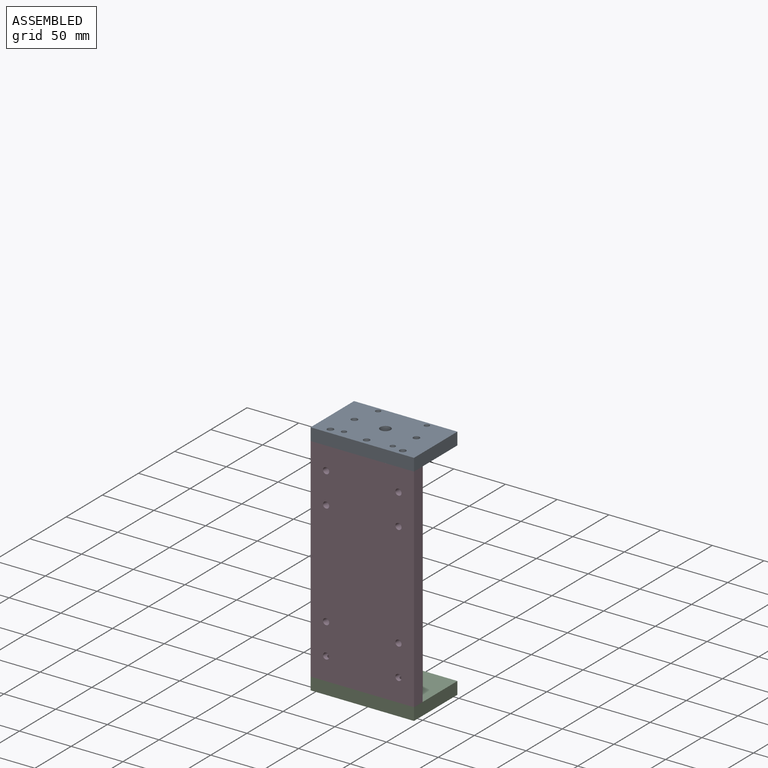
[diagram: assembled view]
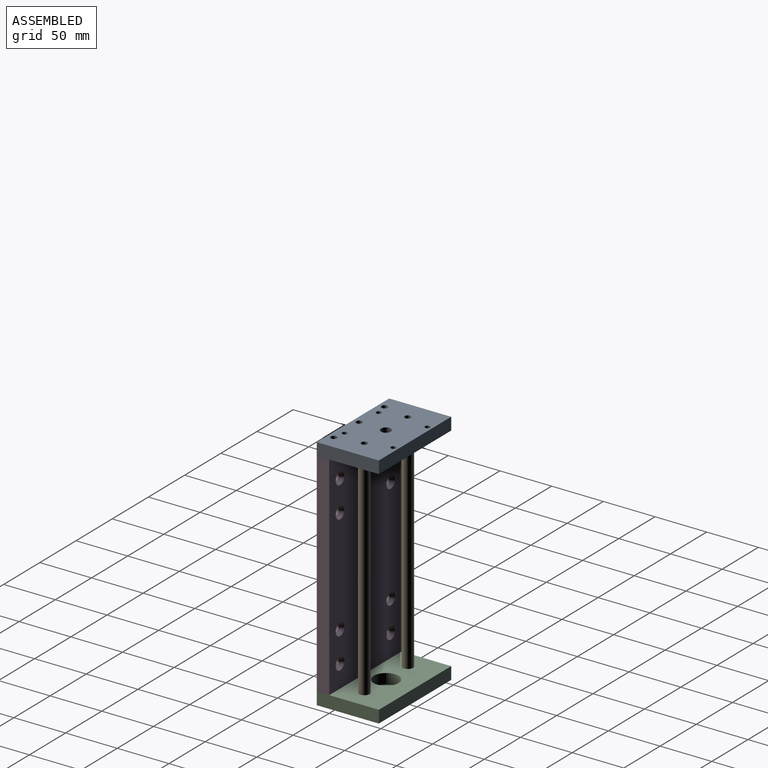
[diagram: assembled view, second angle]
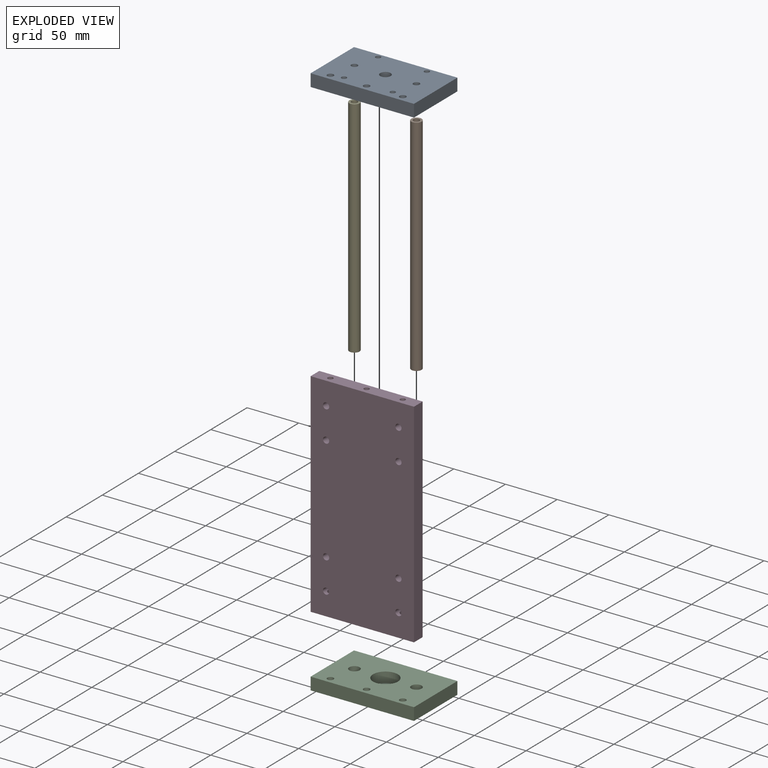
[diagram: exploded view]
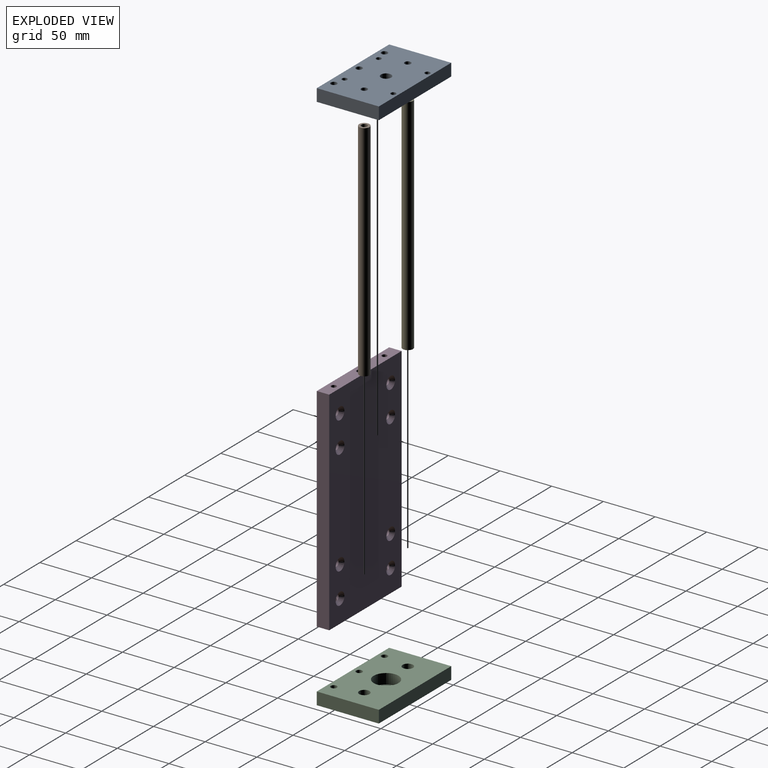
[diagram: exploded view, second angle]
ASSEMBLY  parts=5 mates=4
PART A: 22 faces, bbox 100x60x12 mm
  f0: plane 60x12mm, normal (-1,0,0), area 720mm2, adj f1,f3,f4,f5
  f1: plane 100x12mm, normal (0,-1,0), area 1200mm2, adj f0,f2,f4,f5
  f2: plane 60x12mm, normal (1,0,0), area 720mm2, adj f1,f3,f4,f5
  f3: plane 100x12mm, normal (0,1,0), area 1200mm2, adj f0,f2,f4,f5
  f4: plane 100x60mm, normal (0,0,1), area 5701.5mm2, adj f0,f1,f2,f3,f10,f11,f12,f13
  f5: plane 100x60mm, normal (0,0,-1), area 5483.2mm2, adj f0,f1,f2,f3,f6,f8,f12,f13
  f6: cylinder r=5mm len=10mm, axis (0,0,-1), area 157.1mm2, adj f5,f7
  f7: plane 10x10mm, normal (0,0,-1), area 50.3mm2, adj f6,f11
  f8: cylinder r=5mm len=10mm, axis (0,0,-1), area 157.1mm2, adj f5,f9
  f9: plane 10x10mm, normal (0,0,-1), area 50.3mm2, adj f8,f10
  f10: cylinder r=3mm len=7mm, axis (0,0,-1), area 131.9mm2, adj f4,f9
  f11: cylinder r=3mm len=7mm, axis (0,0,-1), area 131.9mm2, adj f4,f7
  f12: cylinder r=3mm len=12mm, axis (0,0,-1), area 226.2mm2, adj f4,f5
  f13: cylinder r=3mm len=12mm, axis (0,0,-1), area 226.2mm2, adj f4,f5
  f14: cylinder r=3mm len=12mm, axis (0,0,-1), area 226.2mm2, adj f4,f5
  f15: cylinder r=5mm len=12mm, axis (0,0,-1), area 377mm2, adj f4,f5
  f16: cylinder r=2.5mm len=12mm, axis (0,0,-1), area 188.5mm2, adj f4,f5
  f17: cylinder r=2.5mm len=12mm, axis (0,0,-1), area 188.5mm2, adj f4,f5
  f18: cylinder r=2.5mm len=9.12mm, axis (0,0,-1), area 143.3mm2, adj f4,f19
  f19: cone r=2.5mm half-angle=41deg, axis (0,0,-1), area 89.8mm2, adj f5,f18
  f20: cylinder r=2.5mm len=9.12mm, axis (0,0,-1), area 143.3mm2, adj f4,f21
  f21: cone r=2.5mm half-angle=41deg, axis (0,0,-1), area 89.8mm2, adj f5,f20
PART B: 7 faces, bbox 10x217x10 mm
  f0: cylinder r=5mm len=217mm, axis (0,1,0), area 6817.3mm2, adj f1,f2
  f1: plane 10x10mm, normal (0,-1,0), area 50.3mm2, adj f0,f6
  f2: plane 10x10mm, normal (0,1,0), area 50.3mm2, adj f0,f4
  f3: cone r=0mm half-angle=59deg, axis (0,1,0), area 33mm2, adj f4
  f4: cylinder r=3mm len=20mm, axis (0,1,0), area 377mm2, adj f2,f3
  f5: cone r=0mm half-angle=59deg, axis (0,-1,0), area 33mm2, adj f6
  f6: cylinder r=3mm len=20mm, axis (0,-1,0), area 377mm2, adj f1,f5
PART C: 18 faces, bbox 100x60x12 mm
  f0: plane 60x12mm, normal (-1,0,0), area 720mm2, adj f1,f3,f4,f5
  f1: plane 100x12mm, normal (0,-1,0), area 1200mm2, adj f0,f2,f4,f5
  f2: plane 60x12mm, normal (1,0,0), area 720mm2, adj f1,f3,f4,f5
  f3: plane 100x12mm, normal (0,1,0), area 1200mm2, adj f0,f2,f4,f5
  f4: plane 100x60mm, normal (0,0,1), area 5780.1mm2, adj f0,f1,f2,f3,f6,f7,f12,f15
  f5: plane 100x60mm, normal (0,0,-1), area 5305.7mm2, adj f0,f1,f2,f3,f8,f10,f13,f15
  f6: cylinder r=3mm len=7mm, axis (0,0,-1), area 131.9mm2, adj f4,f11
  f7: cylinder r=3mm len=7mm, axis (0,0,-1), area 131.9mm2, adj f4,f9
  f8: cylinder r=5mm len=10mm, axis (0,0,-1), area 157.1mm2, adj f5,f9
  f9: plane 10x10mm, normal (0,0,-1), area 50.3mm2, adj f7,f8
  f10: cylinder r=5mm len=10mm, axis (0,0,-1), area 157.1mm2, adj f5,f11
  f11: plane 10x10mm, normal (0,0,-1), area 50.3mm2, adj f6,f10
  f12: cylinder r=5mm len=10mm, axis (0,0,-1), area 62.8mm2, adj f4,f14
  f13: cylinder r=12mm len=24mm, axis (0,0,-1), area 754mm2, adj f5,f14
  f14: plane 24x24mm, normal (0,0,-1), area 373.8mm2, adj f12,f13
  f15: cylinder r=3mm len=12mm, axis (0,0,-1), area 226.2mm2, adj f4,f5
  f16: cylinder r=3mm len=12mm, axis (0,0,-1), area 226.2mm2, adj f4,f5
  f17: cylinder r=3mm len=12mm, axis (0,0,-1), area 226.2mm2, adj f4,f5
PART D: 38 faces, bbox 100x12x206 mm
  f0: cone r=0mm half-angle=59deg, axis (0,0,-1), area 0.3mm2, adj f2,f36
  f1: cone r=0mm half-angle=59deg, axis (0,0,-1), area 0.3mm2, adj f2,f36
  f2: cylinder r=2.5mm len=20mm, axis (0,0,-1), area 307.2mm2, adj f0,f1,f13,f36
  f3: cone r=0mm half-angle=59deg, axis (0,0,-1), area 0.3mm2, adj f5,f30
  f4: cone r=0mm half-angle=59deg, axis (0,0,-1), area 0.3mm2, adj f5,f30
  f5: cylinder r=2.5mm len=20mm, axis (0,0,-1), area 307.2mm2, adj f3,f4,f13,f30
  f6: cone r=0mm half-angle=59deg, axis (0,0,1), area 0.3mm2, adj f8,f24
  f7: cone r=0mm half-angle=59deg, axis (0,0,1), area 0.3mm2, adj f8,f24
  f8: cylinder r=2.5mm len=20mm, axis (0,0,1), area 307.2mm2, adj f6,f7,f15,f24
  f9: cone r=0mm half-angle=59deg, axis (0,0,1), area 0.3mm2, adj f11,f22
  f10: cone r=0mm half-angle=59deg, axis (0,0,1), area 0.3mm2, adj f11,f22
  f11: cylinder r=2.5mm len=20mm, axis (0,0,1), area 307.2mm2, adj f9,f10,f15,f22
  f12: plane 206x12mm, normal (-1,0,0), area 2472mm2, adj f13,f15,f16,f17
  f13: plane 100x12mm, normal (0,0,-1), area 1141.1mm2, adj f2,f5,f12,f14,f16,f17,f21
  f14: plane 206x12mm, normal (1,0,0), area 2472mm2, adj f13,f15,f16,f17
  f15: plane 100x12mm, normal (0,0,1), area 1141.1mm2, adj f8,f11,f12,f14,f16,f17,f19
  f16: plane 206x100mm, normal (0,-1,0), area 20373.8mm2, adj f12,f13,f14,f15,f22,f24,f26,f28
  f17: plane 206x100mm, normal (0,1,0), area 19695.2mm2, adj f12,f13,f14,f15,f23,f25,f27,f29
  f18: cone r=0mm half-angle=59deg, axis (0,0,1), area 22.9mm2, adj f19
  f19: cylinder r=2.5mm len=20mm, axis (0,0,1), area 314.2mm2, adj f15,f18
  f20: cone r=0mm half-angle=59deg, axis (0,0,-1), area 22.9mm2, adj f21
  f21: cylinder r=2.5mm len=20mm, axis (0,0,-1), area 314.2mm2, adj f13,f20
  f22: cylinder r=3mm len=8.55mm, axis (0,1,0), area 139.9mm2, adj f9,f10,f11,f16,f23
  f23: cone r=3mm half-angle=41deg, axis (0,1,0), area 129.3mm2, adj f17,f22
  f24: cylinder r=3mm len=8.55mm, axis (0,1,0), area 139.9mm2, adj f6,f7,f8,f16,f25
  f25: cone r=3mm half-angle=41deg, axis (0,1,0), area 129.3mm2, adj f17,f24
  f26: cylinder r=3mm len=8.55mm, axis (0,1,0), area 161.1mm2, adj f16,f27
  f27: cone r=3mm half-angle=41deg, axis (0,1,0), area 129.3mm2, adj f17,f26
  f28: cylinder r=3mm len=8.55mm, axis (0,1,0), area 161.1mm2, adj f16,f29
  f29: cone r=3mm half-angle=41deg, axis (0,1,0), area 129.3mm2, adj f17,f28
  f30: cylinder r=3mm len=8.55mm, axis (0,1,0), area 139.9mm2, adj f3,f4,f5,f16,f31
  f31: cone r=3mm half-angle=41deg, axis (0,1,0), area 129.3mm2, adj f17,f30
  f32: cylinder r=3mm len=8.55mm, axis (0,1,0), area 161.1mm2, adj f16,f33
  f33: cone r=3mm half-angle=41deg, axis (0,1,0), area 129.3mm2, adj f17,f32
  f34: cylinder r=3mm len=8.55mm, axis (0,1,0), area 161.1mm2, adj f16,f35
  f35: cone r=3mm half-angle=41deg, axis (0,1,0), area 129.3mm2, adj f17,f34
  f36: cylinder r=3mm len=8.55mm, axis (0,1,0), area 139.9mm2, adj f0,f1,f2,f16,f37
  f37: cone r=3mm half-angle=41deg, axis (0,1,0), area 129.3mm2, adj f17,f36
PART E: same geometry as B
PLACE A t=(0,-12,206)mm
PLACE B rot(axis=(-1,0,0),90deg) t=(80,20,-5)mm
PLACE C rot(axis=(0,1,0),180deg) t=(100,-12,0)mm
PLACE D at identity
PLACE E rot(axis=(-1,0,0),90deg) t=(20,20,-5)mm
MATE fastened B.f0 <-> C.f6  axis (0,0,-1) through (80,20,-5)mm
MATE fastened C.f15 <-> D.f0  axis (0,0,1) through (85,-6,0)mm
MATE fastened E.f3 <-> C.f7  axis (0,0,-1) through (20,20,-5)mm
MATE fastened A.f12 <-> D.f3  axis (0,0,-1) through (15,-6,206)mm
